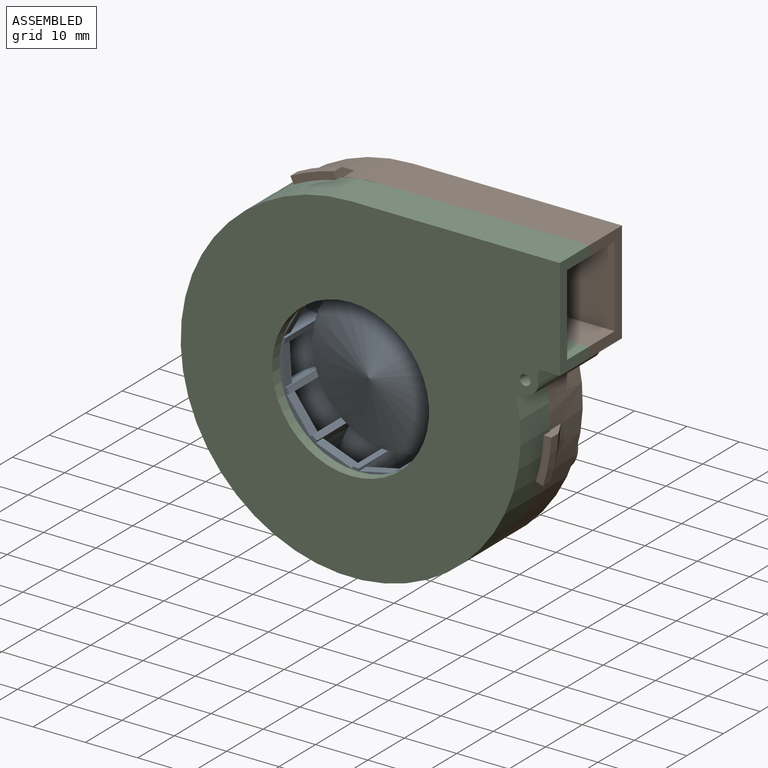
[diagram: assembled view]
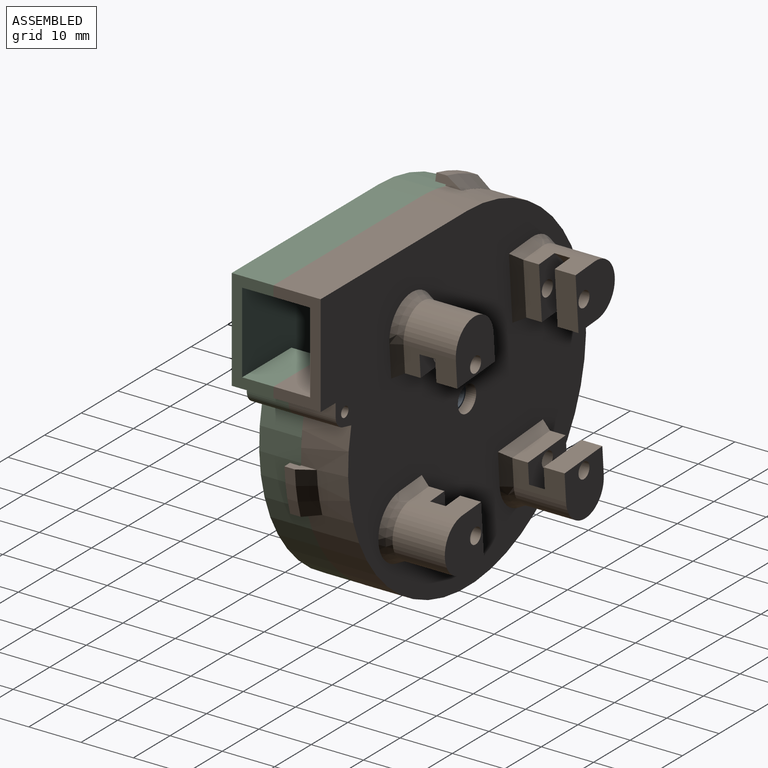
[diagram: assembled view, second angle]
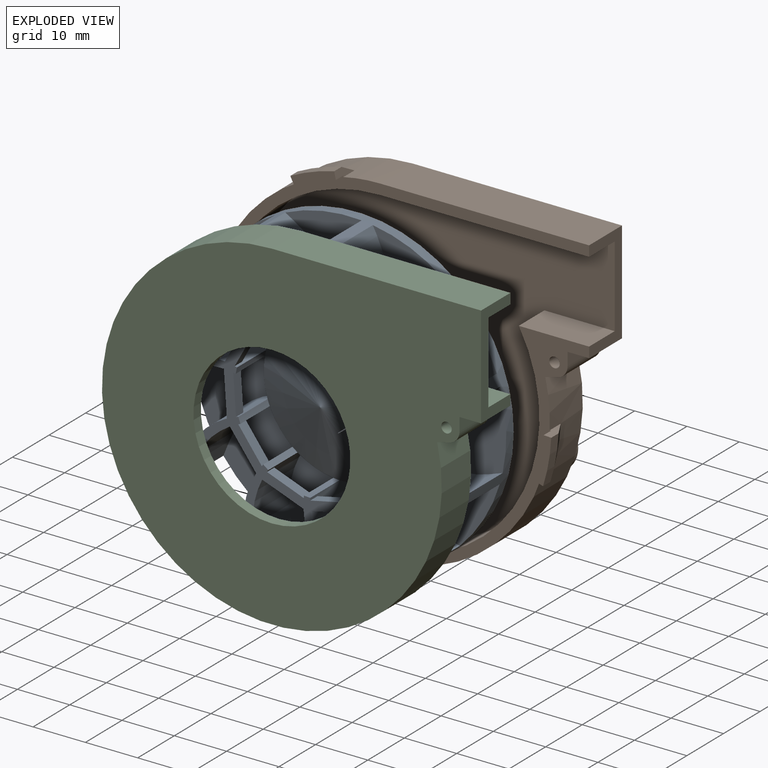
[diagram: exploded view]
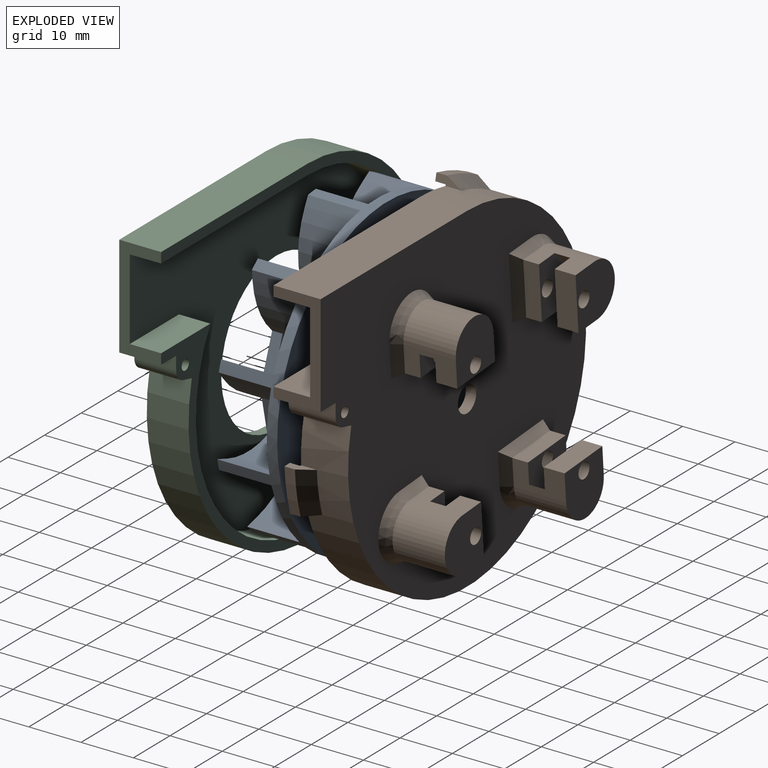
[diagram: exploded view, second angle]
ASSEMBLY  parts=3 mates=3
PART A: 117 faces, bbox 60x12x60 mm
  f0: cylinder r=15mm len=8mm, axis (0,-1,0), area 9.6mm2, adj f30,f57,f58,f113
  f1: cylinder r=15mm len=8mm, axis (0,-1,0), area 9.6mm2, adj f30,f61,f62,f113
  f2: cylinder r=15mm len=8mm, axis (0,-1,0), area 9.6mm2, adj f30,f65,f68,f113
  f3: cylinder r=15mm len=8mm, axis (0,-1,0), area 9.6mm2, adj f26,f29,f30,f113
  f4: cylinder r=15mm len=8mm, axis (0,-1,0), area 9.6mm2, adj f30,f31,f34,f113
  f5: cylinder r=15mm len=8mm, axis (0,-1,0), area 9.6mm2, adj f11,f30,f35,f113
  f6: cylinder r=15mm len=8mm, axis (0,-1,0), area 9.6mm2, adj f12,f30,f40,f113
  f7: cylinder r=15mm len=8mm, axis (0,-1,0), area 9.6mm2, adj f30,f41,f42,f113
  f8: cylinder r=15mm len=8mm, axis (0,-1,0), area 9.6mm2, adj f30,f45,f46,f113
  f9: cylinder r=15mm len=8mm, axis (0,-1,0), area 9.6mm2, adj f30,f49,f50,f113
  f10: cylinder r=15mm len=8mm, axis (0,-1,0), area 9.6mm2, adj f30,f53,f54,f113
  f11: cylinder r=16.81mm len=10mm, axis (0,1,0), area 129.6mm2, adj f5,f21,f30,f37,f93,f94,f95,f103
  f12: cylinder r=16.79mm len=13.58mm, axis (0,1,0), area 142.7mm2, adj f6,f21,f30,f38,f93,f94,f95,f103
  f13: plane 21.29x15.53mm, normal (0,-1,0), area 166.1mm2, adj f24,f26,f27,f67,f68,f111
  f14: plane 17.5x15.98mm, normal (0,-1,0), area 166.1mm2, adj f24,f61,f64,f65,f66,f110
  f15: plane 20.54x13.39mm, normal (0,-1,0), area 166.1mm2, adj f24,f57,f60,f62,f63,f109
  f16: plane 20.68x15.86mm, normal (0,-1,0), area 166.1mm2, adj f24,f53,f56,f58,f59,f108
  f17: plane 16.89x16.37mm, normal (0,-1,0), area 166.1mm2, adj f24,f49,f52,f54,f55,f107
  f18: plane 21.22x13.95mm, normal (0,-1,0), area 166.1mm2, adj f24,f45,f48,f50,f51,f106
  f19: plane 19.69x15.86mm, normal (0,-1,0), area 166.1mm2, adj f24,f41,f44,f46,f47,f105
  f20: plane 18.06x15.25mm, normal (0,-1,0), area 166.1mm2, adj f24,f39,f40,f42,f43,f104
  f21: plane 21.48x14.89mm, normal (0,-1,0), area 166.1mm2, adj f11,f12,f24,f37,f38,f103
  f22: plane 18.61x15.54mm, normal (0,-1,0), area 166.1mm2, adj f24,f33,f34,f35,f36,f102
  f23: plane 19.43x14.16mm, normal (0,-1,0), area 166.1mm2, adj f24,f28,f29,f31,f32,f112
  f24: cylinder r=30mm len=60mm, axis (0,-1,0), area 614mm2, adj f13,f14,f15,f16,f17,f18,f19,f20
  f25: plane 60x60mm, normal (0,1,0), area 2812.2mm2, adj f24,f116
  f26: cylinder r=16.79mm len=12.86mm, axis (0,1,0), area 142.7mm2, adj f3,f13,f27,f30,f69,f70,f71,f111
  f27: plane 10x1.88mm, normal (1,0,0), area 18.8mm2, adj f13,f24,f26,f30
  f28: plane 10x3.07mm, normal (-1,0,0), area 30.7mm2, adj f23,f24,f29,f30
  f29: cylinder r=16.81mm len=11.97mm, axis (0,1,0), area 129.6mm2, adj f3,f23,f28,f30,f99,f100,f101,f112
  f30: plane 59.65x59.18mm, normal (0,-1,0), area 451.6mm2, adj f0,f1,f2,f3,f4,f5,f6,f7
  f31: cylinder r=16.79mm len=14.06mm, axis (0,1,0), area 142.7mm2, adj f4,f23,f30,f32,f99,f100,f101,f112
  f32: plane 10x1.58mm, normal (0.84,0,0.54), area 18.8mm2, adj f23,f24,f30,f31
  f33: plane 10x2.58mm, normal (-0.84,0,-0.54), area 30.7mm2, adj f22,f24,f30,f34
  f34: cylinder r=16.81mm len=12.78mm, axis (0,1,0), area 129.6mm2, adj f4,f22,f30,f33,f96,f97,f98,f102
  f35: cylinder r=16.79mm len=10.8mm, axis (0,1,0), area 142.7mm2, adj f5,f22,f30,f36,f96,f97,f98,f102
  f36: plane 10x1.71mm, normal (0.42,0,0.91), area 18.8mm2, adj f22,f24,f30,f35
  f37: plane 10x2.79mm, normal (-0.42,0,-0.91), area 30.7mm2, adj f11,f21,f24,f30
  f38: plane 10x1.86mm, normal (-0.14,0,0.99), area 18.8mm2, adj f12,f21,f24,f30
  f39: plane 10x3.04mm, normal (0.14,0,-0.99), area 30.7mm2, adj f20,f24,f30,f40
  f40: cylinder r=16.81mm len=12.56mm, axis (0,1,0), area 129.6mm2, adj f6,f20,f30,f39,f90,f91,f92,f104
  f41: cylinder r=16.81mm len=12.33mm, axis (0,1,0), area 129.6mm2, adj f7,f19,f30,f44,f87,f88,f89,f105
  f42: cylinder r=16.79mm len=13.64mm, axis (0,1,0), area 142.7mm2, adj f7,f20,f30,f43,f90,f91,f92,f104
  f43: plane 10x1.42mm, normal (-0.65,0,0.76), area 18.8mm2, adj f20,f24,f30,f42
  f44: plane 10x2.32mm, normal (0.65,0,-0.76), area 30.7mm2, adj f19,f24,f30,f41
  f45: cylinder r=16.81mm len=10.07mm, axis (0,1,0), area 129.6mm2, adj f8,f18,f30,f48,f84,f85,f86,f106
  f46: cylinder r=16.79mm len=10.65mm, axis (0,1,0), area 142.7mm2, adj f8,f19,f30,f47,f87,f88,f89,f105
  f47: plane 10x1.8mm, normal (-0.96,0,0.28), area 18.8mm2, adj f19,f24,f30,f46
  f48: plane 10x2.94mm, normal (0.96,0,-0.28), area 30.7mm2, adj f18,f24,f30,f45
  f49: cylinder r=16.81mm len=12.9mm, axis (0,1,0), area 129.6mm2, adj f9,f17,f30,f52,f81,f82,f83,f107
  f50: cylinder r=16.79mm len=14.03mm, axis (0,1,0), area 142.7mm2, adj f9,f18,f30,f51,f84,f85,f86,f106
  f51: plane 10x1.8mm, normal (-0.96,0,-0.28), area 18.8mm2, adj f18,f24,f30,f50
  f52: plane 10x2.94mm, normal (0.96,0,0.28), area 30.7mm2, adj f17,f24,f30,f49
  f53: cylinder r=16.81mm len=11.62mm, axis (0,1,0), area 129.6mm2, adj f10,f16,f30,f56,f78,f79,f80,f108
  f54: cylinder r=16.79mm len=12.95mm, axis (0,1,0), area 142.7mm2, adj f10,f17,f30,f55,f81,f82,f83,f107
  f55: plane 10x1.42mm, normal (-0.65,0,-0.76), area 18.8mm2, adj f17,f24,f30,f54
  f56: plane 10x2.32mm, normal (0.65,0,0.76), area 30.7mm2, adj f16,f24,f30,f53
  f57: cylinder r=16.81mm len=11.14mm, axis (0,1,0), area 129.6mm2, adj f0,f15,f30,f60,f75,f76,f77,f109
  f58: cylinder r=16.79mm len=11.87mm, axis (0,1,0), area 142.7mm2, adj f0,f16,f30,f59,f78,f79,f80,f108
  f59: plane 10x1.86mm, normal (-0.14,0,-0.99), area 18.8mm2, adj f16,f24,f30,f58
  f60: plane 10x3.04mm, normal (0.14,0,0.99), area 30.7mm2, adj f15,f24,f30,f57
  f61: cylinder r=16.81mm len=12.97mm, axis (0,1,0), area 129.6mm2, adj f1,f14,f30,f64,f72,f73,f74,f110
  f62: cylinder r=16.79mm len=14.19mm, axis (0,1,0), area 142.7mm2, adj f1,f15,f30,f63,f75,f76,f77,f109
  f63: plane 10x1.71mm, normal (0.42,0,-0.91), area 18.8mm2, adj f15,f24,f30,f62
  f64: plane 10x2.79mm, normal (-0.42,0,0.91), area 30.7mm2, adj f14,f24,f30,f61
  f65: cylinder r=16.79mm len=12mm, axis (0,1,0), area 142.7mm2, adj f2,f14,f30,f66,f72,f73,f74,f110
  f66: plane 10x1.58mm, normal (0.84,0,-0.54), area 18.8mm2, adj f14,f24,f30,f65
  f67: plane 10x2.58mm, normal (-0.84,0,0.54), area 30.7mm2, adj f13,f24,f30,f68
  f68: cylinder r=16.81mm len=10.69mm, axis (0,1,0), area 129.6mm2, adj f2,f13,f30,f67,f69,f70,f71,f111
  f69: plane 8.1x5.04mm, normal (0,1,0), area 14.4mm2, adj f26,f68,f70,f71
  f70: plane 7.58x3.69mm, normal (0.9,0,0.44), area 16.9mm2, adj f26,f30,f68,f69
  f71: plane 6.76x3.29mm, normal (-0.9,0,-0.44), area 15mm2, adj f26,f30,f68,f69
  f72: plane 8.37x2.75mm, normal (0,1,0), area 14.4mm2, adj f61,f65,f73,f74
  f73: plane 8.37x2mm, normal (0.99,0,-0.12), area 16.9mm2, adj f30,f61,f65,f72
  f74: plane 7.47x2mm, normal (-0.99,0,0.12), area 15mm2, adj f30,f61,f65,f72
  f75: plane 7.18x6.57mm, normal (0,1,0), area 14.4mm2, adj f57,f62,f76,f77
  f76: plane 6.51x5.37mm, normal (0.77,0,-0.64), area 16.9mm2, adj f30,f57,f62,f75
  f77: plane 5.8x4.79mm, normal (-0.77,0,0.64), area 15mm2, adj f30,f57,f62,f75
  f78: plane 8.3x4.1mm, normal (0,1,0), area 14.4mm2, adj f53,f58,f79,f80
  f79: plane 8.03x2.57mm, normal (0.3,0,-0.95), area 16.9mm2, adj f30,f53,f58,f78
  f80: plane 7.16x2.29mm, normal (-0.3,0,0.95), area 15mm2, adj f30,f53,f58,f78
  f81: plane 8.15x3.84mm, normal (0,1,0), area 14.4mm2, adj f49,f54,f82,f83
  f82: plane 8.15x2.18mm, normal (-0.26,0,-0.97), area 16.9mm2, adj f30,f49,f54,f81
  f83: plane 7.26x2mm, normal (0.26,0,0.97), area 15mm2, adj f30,f49,f54,f81
  f84: plane 7.23x6.59mm, normal (0,1,0), area 14.4mm2, adj f45,f50,f85,f86
  f85: plane 6.24x5.68mm, normal (-0.74,0,-0.67), area 16.9mm2, adj f30,f45,f50,f84
  f86: plane 5.56x5.06mm, normal (0.74,0,0.67), area 15mm2, adj f30,f45,f50,f84
  f87: plane 8.34x3.07mm, normal (0,1,0), area 14.4mm2, adj f41,f46,f88,f89
  f88: plane 8.32x2mm, normal (-0.99,0,-0.17), area 16.9mm2, adj f30,f41,f46,f87
  f89: plane 7.42x2mm, normal (0.99,0,0.17), area 15mm2, adj f30,f41,f46,f87
  f90: plane 7.9x4.86mm, normal (0,1,0), area 14.4mm2, adj f40,f42,f91,f92
  f91: plane 7.75x3.32mm, normal (-0.92,0,0.39), area 16.9mm2, adj f30,f40,f42,f90
  f92: plane 6.91x2.96mm, normal (0.92,0,-0.39), area 15mm2, adj f30,f40,f42,f90
  f93: plane 7.75x5.87mm, normal (0,1,0), area 14.4mm2, adj f11,f12,f94,f95
  f94: plane 6.23x4.22mm, normal (0.56,0,-0.83), area 15mm2, adj f11,f12,f30,f93
  f95: plane 6.98x4.73mm, normal (-0.56,0,0.83), area 16.9mm2, adj f11,f12,f30,f93
  f96: plane 8.43x1.99mm, normal (0,1,0), area 14.4mm2, adj f34,f35,f97,f98
  f97: plane 8.43x2mm, normal (-0.02,0,1), area 16.9mm2, adj f30,f34,f35,f96
  f98: plane 7.52x2mm, normal (0.02,0,-1), area 15mm2, adj f30,f34,f35,f96
  f99: plane 6.42x3.91mm, normal (-0.52,0,-0.85), area 15mm2, adj f29,f30,f31,f101
  f100: plane 7.2x4.39mm, normal (0.52,0,0.85), area 16.9mm2, adj f29,f30,f31,f101
  f101: plane 7.61x5.77mm, normal (0,1,0), area 14.4mm2, adj f29,f31,f99,f100
  f102: cylinder r=15mm len=7.29mm, axis (0,1,0), area 14.7mm2, adj f22,f34,f35,f113
  f103: cylinder r=15mm len=6.04mm, axis (0,1,0), area 14.7mm2, adj f11,f12,f21,f113
  f104: cylinder r=15mm len=6.71mm, axis (0,1,0), area 14.7mm2, adj f20,f40,f42,f113
  f105: cylinder r=15mm len=7.19mm, axis (0,1,0), area 14.7mm2, adj f19,f41,f46,f113
  f106: cylinder r=15mm len=5.4mm, axis (0,1,0), area 14.7mm2, adj f18,f45,f50,f113
  f107: cylinder r=15mm len=7.05mm, axis (0,1,0), area 14.7mm2, adj f17,f49,f54,f113
  f108: cylinder r=15mm len=6.95mm, axis (0,1,0), area 14.7mm2, adj f16,f53,f58,f113
  f109: cylinder r=15mm len=5.63mm, axis (0,1,0), area 14.7mm2, adj f15,f57,f62,f113
  f110: cylinder r=15mm len=7.24mm, axis (0,1,0), area 14.7mm2, adj f14,f61,f65,f113
  f111: cylinder r=15mm len=6.56mm, axis (0,1,0), area 14.7mm2, adj f13,f26,f68,f113
  f112: cylinder r=15mm len=6.23mm, axis (0,1,0), area 14.7mm2, adj f23,f29,f31,f113
  f113: cone r=15mm half-angle=68.2deg, axis (0,1,0), area 761.3mm2, adj f0,f1,f2,f3,f4,f5,f6,f7
  f114: cylinder r=2mm len=6mm, axis (0,1,0), area 75.4mm2, adj f115,f116
  f115: plane 4x4mm, normal (0,1,0), area 12.6mm2, adj f114
  f116: cone r=2mm half-angle=11.3deg, axis (0,1,0), area 13.5mm2, adj f25,f114
PART B: 104 faces, bbox 72.5x23x65.9 mm
  f0: plane 70.5x61mm, normal (0,-1,0), area 3202.3mm2, adj f38,f39,f41,f42,f43,f72,f73,f74
  f1: plane 10.3x3mm, normal (-1,0,0.08), area 31mm2, adj f6,f80,f86,f101
  f2: plane 10.3x4mm, normal (-1,0,0.08), area 41.3mm2, adj f3,f5,f80,f86
  f3: plane 10.71x10.71mm, normal (0,1,0), area 88.2mm2, adj f2,f62,f80,f81,f86
  f4: plane 10.71x10.71mm, normal (0,1,0), area 88.2mm2, adj f21,f63,f82,f83,f87
  f5: plane 10.63x7.54mm, normal (0,-1,0), area 56.6mm2, adj f2,f7,f62,f66,f67,f80,f86
  f6: plane 10.63x7.54mm, normal (0,1,0), area 56.6mm2, adj f1,f7,f66,f67,f73,f80,f86
  f7: plane 3x1.28mm, normal (-0.71,0,-0.71), area 5.4mm2, adj f5,f6,f66,f86
  f8: plane 10.3x3mm, normal (1,0,-0.08), area 31mm2, adj f17,f76,f84,f93
  f9: plane 10.3x4mm, normal (1,0,-0.08), area 41.3mm2, adj f12,f16,f76,f84
  f10: plane 10.3x3mm, normal (-0.08,0,-1), area 31mm2, adj f15,f78,f85,f97
  f11: plane 10.3x4mm, normal (-0.08,0,-1), area 41.3mm2, adj f13,f14,f78,f85
  f12: plane 10.71x10.71mm, normal (0,1,0), area 88.2mm2, adj f9,f60,f76,f77,f84
  f13: plane 10.71x10.71mm, normal (0,1,0), area 88.2mm2, adj f11,f61,f78,f79,f85
  f14: plane 10.63x7.54mm, normal (0,-1,0), area 56.6mm2, adj f11,f18,f61,f68,f69,f78,f85
  f15: plane 10.63x7.54mm, normal (0,1,0), area 56.6mm2, adj f10,f18,f68,f69,f74,f78,f85
  f16: plane 10.63x7.54mm, normal (0,-1,0), area 56.6mm2, adj f9,f19,f60,f70,f71,f76,f84
  f17: plane 10.63x7.54mm, normal (0,1,0), area 56.6mm2, adj f8,f19,f70,f71,f75,f76,f84
  f18: plane 3x1.28mm, normal (0.71,0,-0.71), area 5.4mm2, adj f14,f15,f68,f85
  f19: plane 3x1.28mm, normal (0.71,0,0.71), area 5.4mm2, adj f16,f17,f70,f84
  f20: plane 10.3x3mm, normal (0.08,0,1), area 31mm2, adj f23,f82,f87,f89
  f21: plane 10.3x4mm, normal (0.08,0,1), area 41.3mm2, adj f4,f22,f82,f87
  f22: plane 10.63x7.54mm, normal (0,-1,0), area 56.6mm2, adj f21,f24,f63,f64,f65,f82,f87
  f23: plane 10.63x7.54mm, normal (0,1,0), area 56.6mm2, adj f20,f24,f64,f65,f72,f82,f87
  f24: plane 3x1.28mm, normal (-0.71,0,0.71), area 5.4mm2, adj f22,f23,f64,f82
  f25: plane 5x1.66mm, normal (0.98,0,0.21), area 5.5mm2, adj f27,f30,f32,f33,f34,f35,f55
  f26: plane 5x1.62mm, normal (-0.3,0,-0.95), area 5.5mm2, adj f28,f34,f35,f44,f45,f47,f54
  f27: plane 8.71x4.33mm, normal (0,-1,0), area 12.7mm2, adj f25,f31,f33,f55
  f28: plane 8.86x2.95mm, normal (0,-1,0), area 12.7mm2, adj f26,f46,f47,f54
  f29: plane 7.61x6.73mm, normal (0,-1,0), area 12.7mm2, adj f48,f49,f50,f53
  f30: plane 7.98x2.9mm, normal (0,1,0), area 0.1mm2, adj f25,f31,f32,f34
  f31: plane 5x1.51mm, normal (-0.89,0,-0.46), area 5.5mm2, adj f27,f30,f32,f33,f34,f35,f55
  f32: cone r=34.2mm half-angle=29.4deg, axis (0,-1,0), area 30.1mm2, adj f25,f30,f31,f33
  f33: cylinder r=34.2mm len=8.4mm, axis (0,1,0), area 17.9mm2, adj f25,f27,f31,f32
  f34: cylinder r=32.5mm len=65mm, axis (0,-1,0), area 1370mm2, adj f25,f26,f30,f31,f35,f36,f40,f44
  f35: plane 72.5x65mm, normal (0,-1,0), area 457.8mm2, adj f25,f26,f31,f34,f36,f37,f39,f41
  f36: plane 40x9mm, normal (0,0,1), area 360mm2, adj f34,f35,f39,f40
  f37: plane 9x4.11mm, normal (0,0,-1), area 37mm2, adj f35,f39,f40,f56
  f38: cylinder r=2.5mm len=5mm, axis (0,-1,0), area 31.4mm2, adj f0,f40
  f39: plane 19.5x9mm, normal (1,0,0), area 67mm2, adj f0,f35,f36,f37,f40,f41,f43
  f40: plane 72.5x65mm, normal (0,1,0), area 3138.9mm2, adj f34,f36,f37,f38,f39,f56,f57,f58
  f41: plane 13.44x7mm, normal (0,0,1), area 94.1mm2, adj f0,f35,f39,f42
  f42: cylinder r=30.5mm len=61mm, axis (0,1,0), area 1115.9mm2, adj f0,f35,f41,f43
  f43: plane 40x7mm, normal (0,0,-1), area 280mm2, adj f0,f35,f39,f42
  f44: plane 8.36x1.5mm, normal (0,1,0), area 0.1mm2, adj f26,f34,f45,f46
  f45: cone r=34.2mm half-angle=29.4deg, axis (0,-1,0), area 30.1mm2, adj f26,f44,f46,f47
  f46: plane 5x1.7mm, normal (0.05,0,1), area 5.5mm2, adj f28,f34,f35,f44,f45,f47,f54
  f47: cylinder r=34.2mm len=8.79mm, axis (0,1,0), area 17.9mm2, adj f26,f28,f45,f46
  f48: plane 5x1.43mm, normal (0.84,0,-0.54), area 5.5mm2, adj f29,f34,f35,f50,f51,f52,f53
  f49: plane 5x1.26mm, normal (-0.67,0,0.74), area 5.5mm2, adj f29,f34,f35,f50,f51,f52,f53
  f50: cylinder r=34.2mm len=6.83mm, axis (0,1,0), area 17.9mm2, adj f29,f48,f49,f52
  f51: plane 6.5x5.47mm, normal (0,1,0), area 0.1mm2, adj f34,f48,f49,f52
  f52: cone r=34.2mm half-angle=29.4deg, axis (0,-1,0), area 30.1mm2, adj f48,f49,f50,f51
  f53: cylinder r=32.75mm len=6.54mm, axis (0,1,0), area 17.1mm2, adj f29,f35,f48,f49
  f54: cylinder r=32.75mm len=8.42mm, axis (0,1,0), area 17.1mm2, adj f26,f28,f35,f46
  f55: cylinder r=32.75mm len=8.04mm, axis (0,-1,0), area 17.1mm2, adj f25,f27,f31,f35
  f56: plane 9x2.5mm, normal (1,0,0), area 22.5mm2, adj f35,f37,f40,f57
  f57: cylinder r=2.5mm len=9mm, axis (0,1,0), area 30.1mm2, adj f35,f40,f56,f58
  f58: plane 9x2.35mm, normal (0.23,0,-0.97), area 21.7mm2, adj f34,f35,f40,f57
  f59: cylinder r=1mm len=9mm, axis (0,1,0), area 56.5mm2, adj f35,f40
  f60: cylinder r=1.5mm len=4mm, axis (0,1,0), area 37.7mm2, adj f12,f16
  f61: cylinder r=1.5mm len=4mm, axis (0,1,0), area 37.7mm2, adj f13,f14
  f62: cylinder r=1.5mm len=4mm, axis (0,1,0), area 37.7mm2, adj f3,f5
  f63: cylinder r=1.5mm len=4mm, axis (0,1,0), area 37.7mm2, adj f4,f22
  f64: cylinder r=5.25mm len=7.42mm, axis (0,-1,0), area 24.7mm2, adj f22,f23,f24,f65
  f65: cylinder r=26.18mm len=3mm, axis (0,-1,0), area 7.2mm2, adj f22,f23,f64,f87
  f66: cylinder r=5.25mm len=7.42mm, axis (0,-1,0), area 24.7mm2, adj f5,f6,f7,f67
  f67: cylinder r=26.18mm len=3mm, axis (0,-1,0), area 7.2mm2, adj f5,f6,f66,f80
  f68: cylinder r=5.25mm len=7.42mm, axis (0,-1,0), area 24.7mm2, adj f14,f15,f18,f69
  f69: cylinder r=26.18mm len=3mm, axis (0,-1,0), area 7.2mm2, adj f14,f15,f68,f78
  f70: cylinder r=5.25mm len=7.42mm, axis (0,-1,0), area 24.7mm2, adj f16,f17,f19,f71
  f71: cylinder r=26.18mm len=3mm, axis (0,-1,0), area 7.2mm2, adj f16,f17,f70,f76
  f72: cylinder r=1.5mm len=7mm, axis (0,1,0), area 66mm2, adj f0,f23
  f73: cylinder r=1.5mm len=7mm, axis (0,1,0), area 66mm2, adj f0,f6
  f74: cylinder r=1.5mm len=7mm, axis (0,1,0), area 66mm2, adj f0,f15
  f75: cylinder r=1.5mm len=7mm, axis (0,1,0), area 66mm2, adj f0,f17
  f76: plane 10x5.15mm, normal (0.08,0,1), area 38.9mm2, adj f8,f9,f12,f16,f17,f71,f77,f92
  f77: cylinder r=5.17mm len=10.32mm, axis (0,1,0), area 162.3mm2, adj f12,f76,f84,f94
  f78: plane 10x5.15mm, normal (1,0,-0.08), area 38.9mm2, adj f10,f11,f13,f14,f15,f69,f79,f96
  f79: cylinder r=5.17mm len=10.32mm, axis (0,1,0), area 162.3mm2, adj f13,f78,f85,f98
  f80: plane 10x5.15mm, normal (-0.08,0,-1), area 38.9mm2, adj f1,f2,f3,f5,f6,f67,f81,f100
  f81: cylinder r=5.17mm len=10.32mm, axis (0,1,0), area 162.3mm2, adj f3,f80,f86,f102
  f82: plane 10x5.15mm, normal (1,0,-0.08), area 39.8mm2, adj f4,f20,f21,f22,f23,f24,f83,f88
  f83: cylinder r=5.17mm len=10.32mm, axis (0,1,0), area 162.3mm2, adj f4,f82,f87,f90
  f84: plane 10x5.15mm, normal (-0.08,0,-1), area 39.8mm2, adj f8,f9,f12,f16,f17,f19,f77,f95
  f85: plane 10x5.15mm, normal (-1,0,0.08), area 39.8mm2, adj f10,f11,f13,f14,f15,f18,f79,f99
  f86: plane 10x5.15mm, normal (0.08,0,1), area 39.8mm2, adj f1,f2,f3,f5,f6,f7,f81,f103
  f87: plane 10x5.15mm, normal (-1,0,0.08), area 38.9mm2, adj f4,f20,f21,f22,f23,f65,f83,f91
  f88: plane 6.15x2mm, normal (0.89,0.45,-0.07), area 12.7mm2, adj f40,f82,f89,f90
  f89: plane 12.3x2mm, normal (0.07,0.45,0.89), area 25.3mm2, adj f20,f40,f88,f91
  f90: cone r=5.17mm half-angle=26.6deg, axis (0,-1,0), area 39.8mm2, adj f40,f83,f88,f91
  f91: plane 6.22x2mm, normal (-0.89,0.45,0.07), area 12.7mm2, adj f40,f87,f89,f90
  f92: plane 6.22x2mm, normal (0.07,0.45,0.89), area 12.7mm2, adj f40,f76,f93,f94
  f93: plane 12.3x2mm, normal (0.89,0.45,-0.07), area 25.3mm2, adj f8,f40,f92,f95
  f94: cone r=5.17mm half-angle=26.6deg, axis (0,-1,0), area 39.8mm2, adj f40,f77,f92,f95
  f95: plane 6.15x2mm, normal (-0.07,0.45,-0.89), area 12.7mm2, adj f40,f84,f93,f94
  f96: plane 6.22x2mm, normal (0.89,0.45,-0.07), area 12.7mm2, adj f40,f78,f97,f98
  f97: plane 12.3x2mm, normal (-0.07,0.45,-0.89), area 25.3mm2, adj f10,f40,f96,f99
  f98: cone r=5.17mm half-angle=26.6deg, axis (0,-1,0), area 39.8mm2, adj f40,f79,f96,f99
  f99: plane 6.15x2mm, normal (-0.89,0.45,0.07), area 12.7mm2, adj f40,f85,f97,f98
  f100: plane 6.22x2mm, normal (-0.07,0.45,-0.89), area 12.7mm2, adj f40,f80,f101,f102
  f101: plane 12.3x2mm, normal (-0.89,0.45,0.07), area 25.3mm2, adj f1,f40,f100,f103
  f102: cone r=5.17mm half-angle=26.6deg, axis (0,-1,0), area 39.8mm2, adj f40,f81,f100,f103
  f103: plane 6.15x2mm, normal (0.07,0.45,0.89), area 12.7mm2, adj f40,f86,f101,f102
PART C: 15 faces, bbox 72.5x8x65 mm
  f0: plane 70.5x61mm, normal (0,1,0), area 2543.3mm2, adj f2,f4,f7,f8,f9
  f1: plane 8x4.11mm, normal (0,0,-1), area 32.9mm2, adj f2,f6,f10,f11
  f2: plane 19.5x8mm, normal (1,0,0), area 63mm2, adj f0,f1,f3,f6,f7,f9,f10
  f3: plane 40x8mm, normal (0,0,1), area 320mm2, adj f2,f5,f6,f10
  f4: cylinder r=15mm len=30mm, axis (0,1,0), area 188.5mm2, adj f0,f6
  f5: cylinder r=32.5mm len=65mm, axis (0,1,0), area 1285.9mm2, adj f3,f6,f10,f13
  f6: plane 72.5x65mm, normal (0,-1,0), area 2994.7mm2, adj f1,f2,f3,f4,f5,f11,f12,f13
  f7: plane 13.44x6mm, normal (0,0,1), area 80.7mm2, adj f0,f2,f8,f10
  f8: cylinder r=30.5mm len=61mm, axis (0,-1,0), area 956.5mm2, adj f0,f7,f9,f10
  f9: plane 40x6mm, normal (0,0,-1), area 240mm2, adj f0,f2,f8,f10
  f10: plane 72.5x65mm, normal (0,1,0), area 451.4mm2, adj f1,f2,f3,f5,f7,f8,f9,f11
  f11: plane 8x2.5mm, normal (1,0,0), area 20mm2, adj f1,f6,f10,f12
  f12: cylinder r=2.5mm len=8mm, axis (0,-1,0), area 26.8mm2, adj f6,f10,f11,f13
  f13: plane 8x2.35mm, normal (0.23,0,-0.97), area 19.3mm2, adj f5,f6,f10,f12
  f14: cylinder r=1mm len=8mm, axis (0,-1,0), area 50.3mm2, adj f6,f10
PLACE A rot(axis=(0,1,0),5.6deg) t=(50.77,24.34,44.36)mm
PLACE B t=(50.77,26.34,44.36)mm fixed
PLACE C t=(50.77,13.34,44.36)mm
MATE revolute A.f24 <-> B.f38  axis (0,1,0) through (50.77,26.34,44.36)mm
MATE revolute B.f34 <-> C.f5  axis (0,-1,0) through (50.77,19.34,44.36)mm
MATE parallel C.f3 <-> B.f36  axis (0,0,1) through (70.77,15.34,76.86)mm
